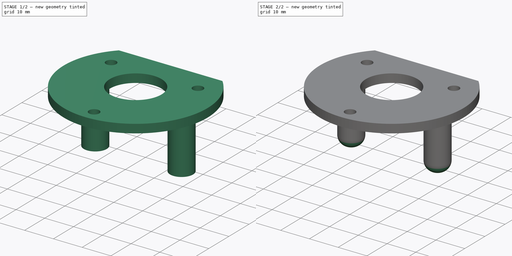
[diagram: build sequence overview — one tinted view per stage of 2, left to right]
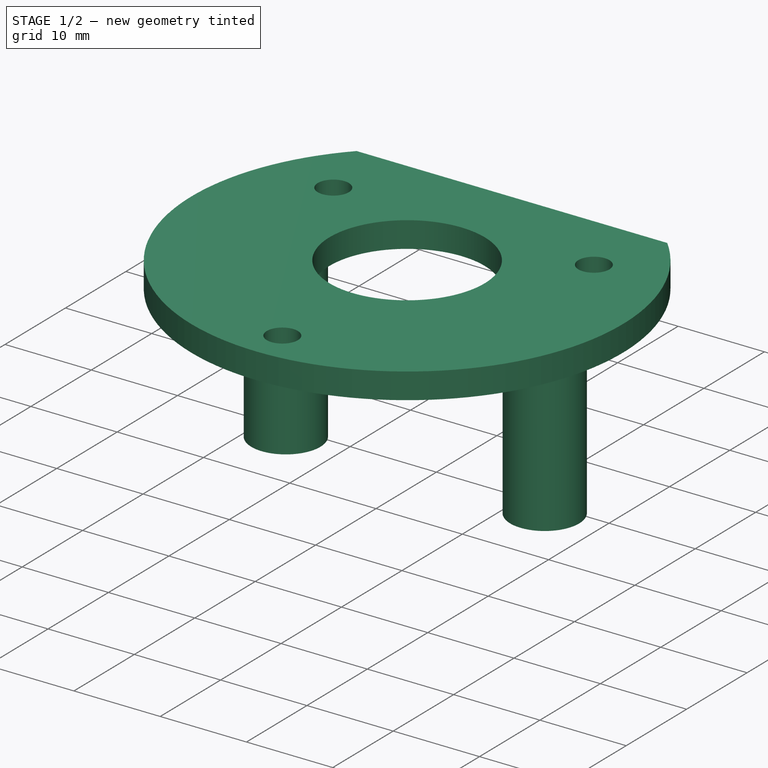
[diagram: stage 1 of 2 — iso view after this stage's code; geometry added in this stage tinted green]
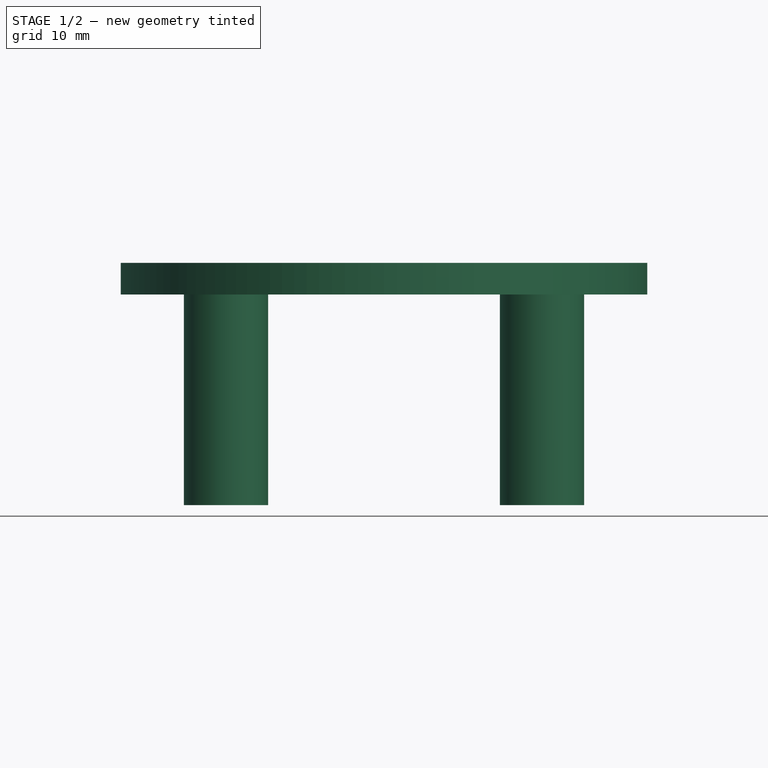
[diagram: stage 1 of 2 — front view after this stage's code; geometry added in this stage tinted green]
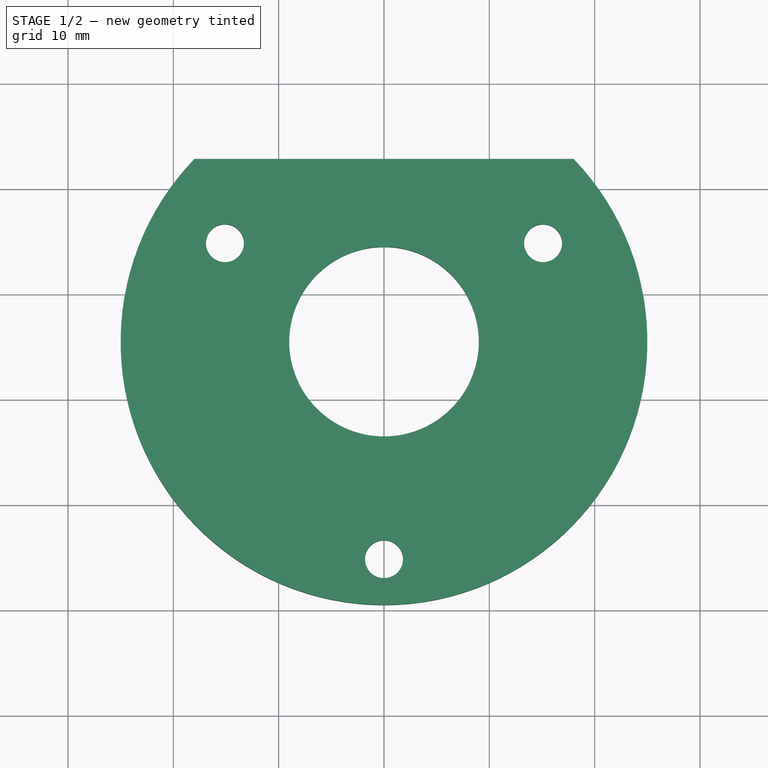
[diagram: stage 1 of 2 — top view after this stage's code; geometry added in this stage tinted green]
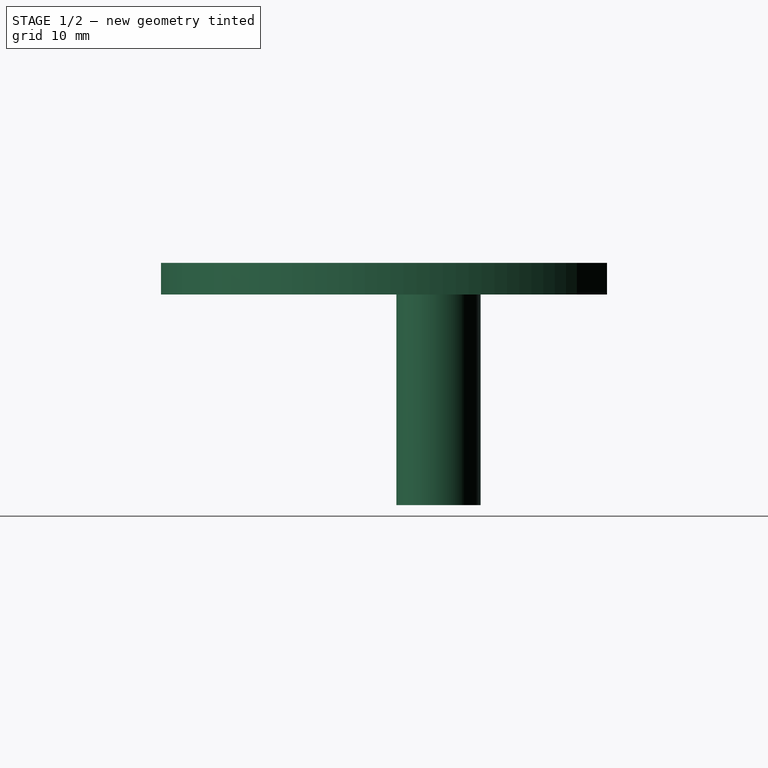
[diagram: stage 1 of 2 — right view after this stage's code; geometry added in this stage tinted green]
FCSTD DOCUMENT  (FreeCAD 1.0R38641 +678 (Git))
Label: pendulum_BearingLock
License: All rights reserved
LicenseURL: https://en.wikipedia.org/wiki/All_rights_reserved
objects: Sketcher::SketchObject×2, PartDesign::Pad×2, PartDesign::CoordinateSystem×1, PartDesign::Fillet×1, PartDesign::Body×1, App::Part×1
note: 15 computed .brp shape members not serialized (recipe doc carries the construction recipe); baked Part::Feature solids carry a one-line shape summary decoded from their .brp

FEATURE [Sketcher::SketchObject] Sketch030
  ArcFitTolerance = 1e-06
  AttachmentSupport = -> [XY_Plane009]
  FullyConstrained = true
  MakeInternals = false
  MapMode = 5
  sketch-geometry (6):
    g0: ArcOfCircle CenterX=0 CenterY=-84.8494 CenterZ=0 NormalX=0 NormalY=0 NormalZ=1 AngleXU=0 Radius=25 StartAngle=2.3746 EndAngle=7.05018
    g1: LineSegment StartX=18 StartY=-67.5 StartZ=0 EndX=-18 EndY=-67.5 EndZ=0
    g2: Circle CenterX=15.1 CenterY=-75.5 CenterZ=0 NormalX=0 NormalY=0 NormalZ=1 AngleXU=0 Radius=1.8
    g3: Circle CenterX=-15.1 CenterY=-75.5 CenterZ=0 NormalX=0 NormalY=0 NormalZ=1 AngleXU=0 Radius=1.8
    g4: Circle CenterX=0 CenterY=-105.5 CenterZ=0 NormalX=0 NormalY=0 NormalZ=1 AngleXU=0 Radius=1.8
    g5: Circle CenterX=0 CenterY=-84.8494 CenterZ=0 NormalX=0 NormalY=0 NormalZ=1 AngleXU=0 Radius=9
  constraints (17):
    c: PointOnObject(g0,g-2)
    c: Diameter(g0) = 50
    c: Horizontal(g1)
    c: Coincident(g0,g1)
    c: Coincident(g0,g1)
    c: DistanceX(g1,g1) = 36
    c: PointOnObject(g4,g-2)
    c: Equal(g3,g2)
    c: Equal(g2,g4)
    c: Diameter(g2) = 3.6
    c: Symmetric(g2,g3,g-2)
    c: DistanceX(g3,g2) = 30.2
    c: DistanceY(g2,g0) = 8
    c: DistanceY(g4,g2) = 30
    c: DistanceY(g0,g-1) = 67.5
    c: Coincident(g5,g0)
    c: Diameter(g5) = 18
FEATURE [PartDesign::Pad] Pad018
  Direction = (0,0,1)
  Length = 3
  Length2 = 10
  Profile = -> Sketch030
  ReferenceAxis = -> Sketch030 [N_Axis]
  Refine = true
  Reversed = true
  Suppressed = false
  Type = 0
FEATURE [PartDesign::CoordinateSystem] BearingLock
  AttacherType = Attacher::AttachEngine3D
  AttachmentOffset = pos=(0,0,0) rot=(0,0,-1;1.5708rad)
  AttachmentSupport = -> [Pad018]
  MapMode = 11
  Placement = pos=(0,-84.8494,-3) rot=(0,0,1;0rad)
FEATURE [Sketcher::SketchObject] Sketch031
  ArcFitTolerance = 1e-06
  AttachmentSupport = -> [Pad018]
  ExternalGeometry = -> [Pad018]
  FullyConstrained = true
  MakeInternals = false
  MapMode = 5
  Placement = pos=(0,0,-3) rot=(1,0,0;3.14159rad)
  sketch-geometry (2):
    g0: Circle CenterX=-15 CenterY=83.5 CenterZ=0 NormalX=0 NormalY=0 NormalZ=1 AngleXU=0 Radius=4
    g1: Circle CenterX=15 CenterY=83.5 CenterZ=0 NormalX=0 NormalY=0 NormalZ=1 AngleXU=0 Radius=4
  constraints (5):
    c: Equal(g0,g1)
    c: Diameter(g0) = 8
    c: Symmetric(g0,g1,g-2)
    c: DistanceX(g0,g1) = 30
    c: DistanceY(g-3,g0) = 8
FEATURE [PartDesign::Pad] Pad019
  BaseFeature = -> Pad018
  Direction = (0,0,-1)
  Length = 20
  Length2 = 10
  Profile = -> Sketch031
  ReferenceAxis = -> Sketch031 [N_Axis]
  Refine = true
  Suppressed = false
  Type = 0
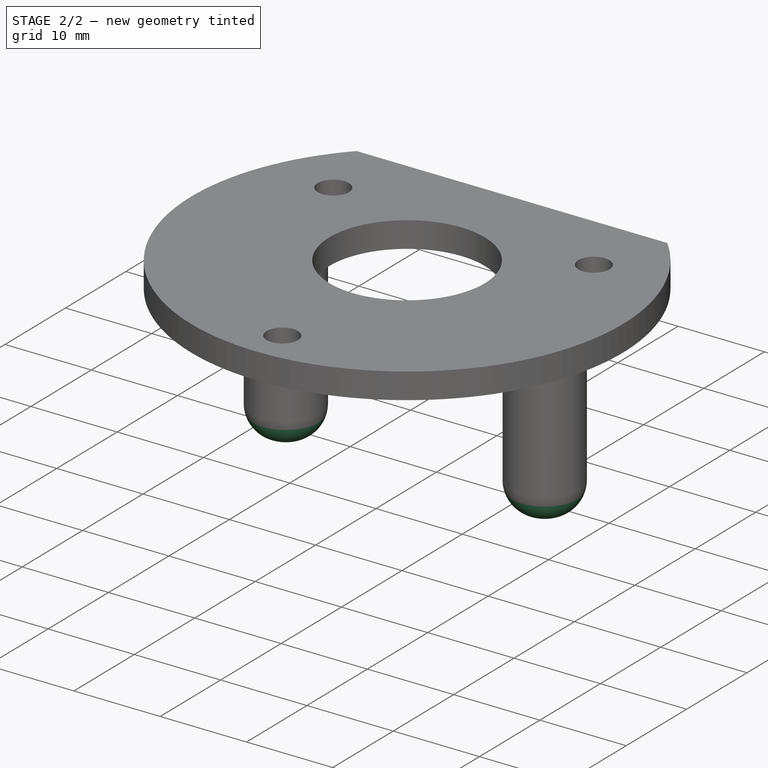
[diagram: stage 2 of 2 — iso view after this stage's code; geometry added in this stage tinted green]
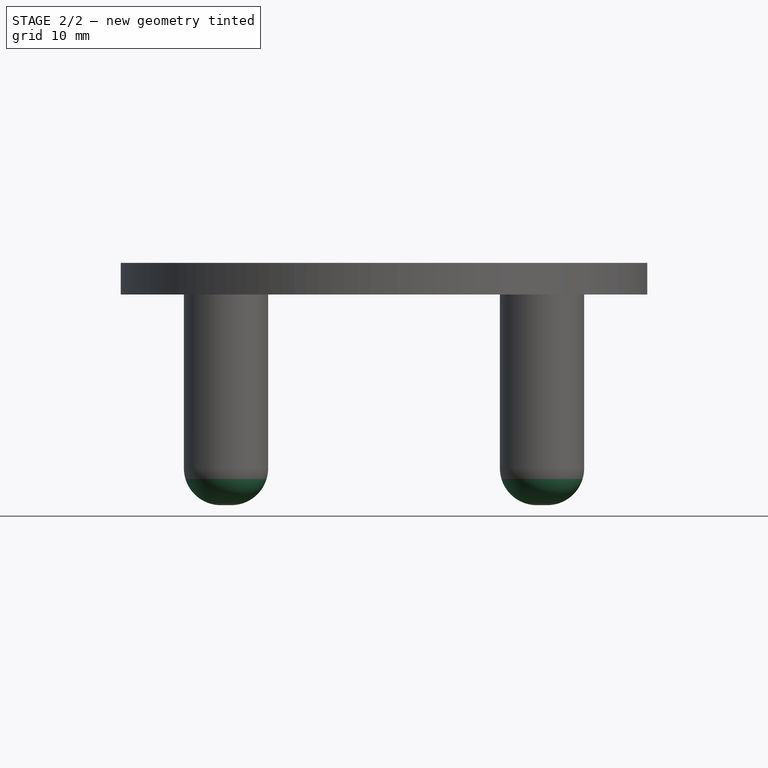
[diagram: stage 2 of 2 — front view after this stage's code; geometry added in this stage tinted green]
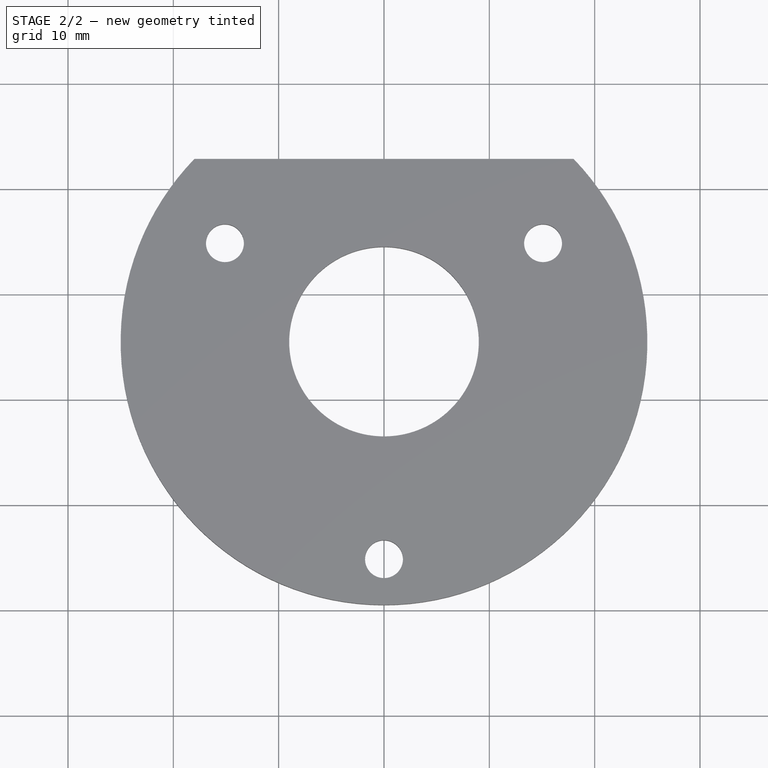
[diagram: stage 2 of 2 — top view after this stage's code; geometry added in this stage tinted green]
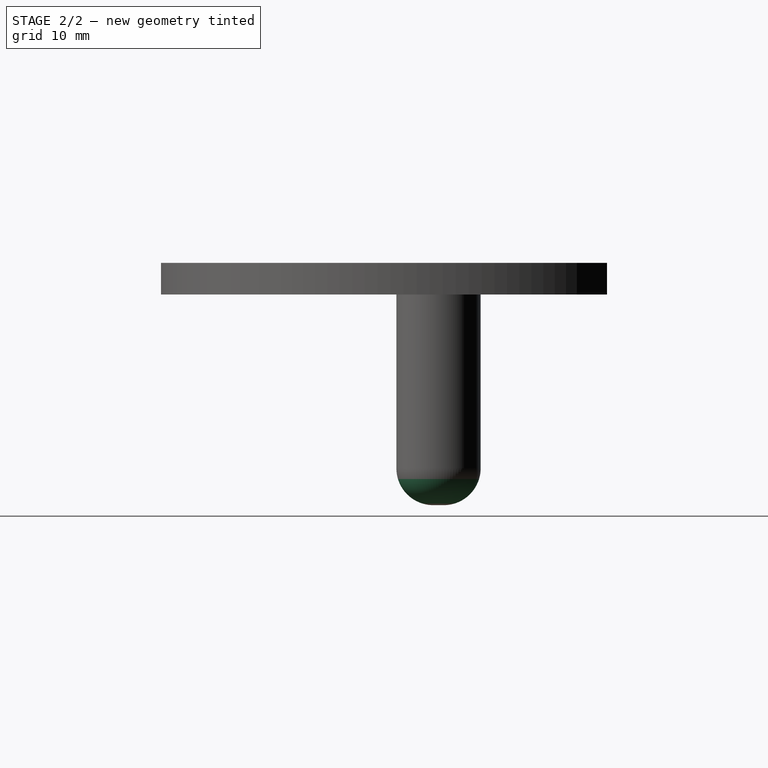
[diagram: stage 2 of 2 — right view after this stage's code; geometry added in this stage tinted green]
FEATURE [PartDesign::Fillet] Fillet
  Base = -> Pad019 [Edge24,Edge22]
  BaseFeature = -> Pad019
  Radius = 3.5
  Refine = true
  SupportTransform = false
  Suppressed = false
  UseAllEdges = false
FEATURE [PartDesign::Body] Body007  label="Body_BearingLock"
  AllowCompound = false
  Group = -> [Sketch030,Pad018,BearingLock,Sketch031,Pad019,Fillet]
  Origin = -> Origin009
  Tip = -> Fillet
FEATURE [App::Part] Part
  Group = -> [Body007]
  Origin = -> Origin001
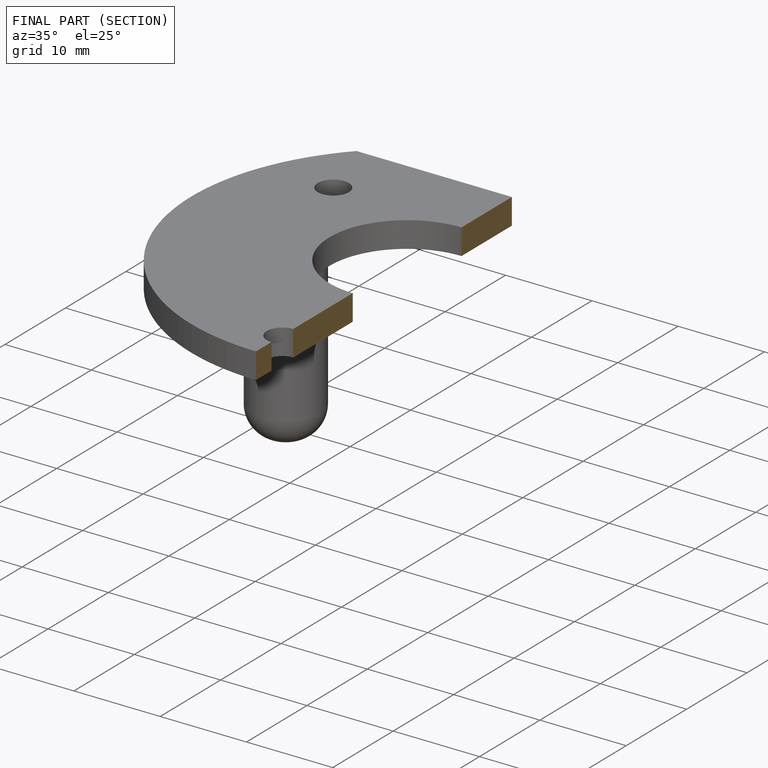
[diagram: finished part — half-section view (interior)]
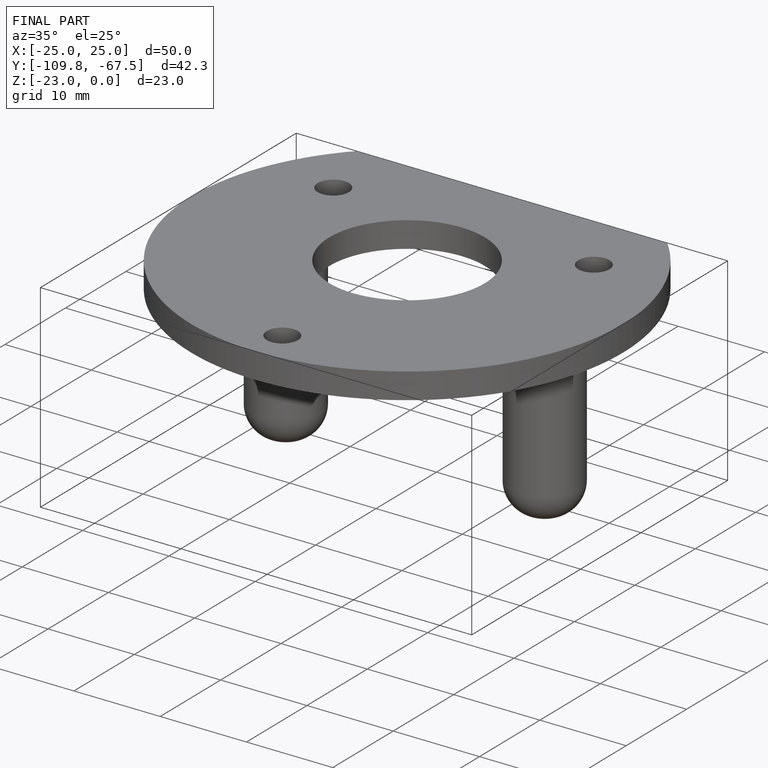
[diagram: finished part — iso view with bounding-box wireframe]
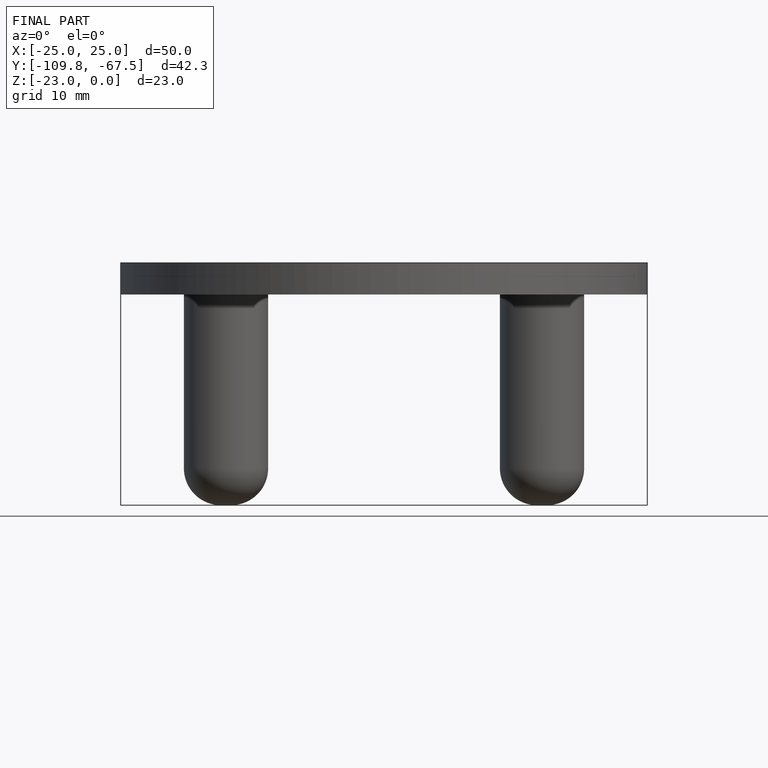
[diagram: finished part — front view with bounding-box wireframe]
